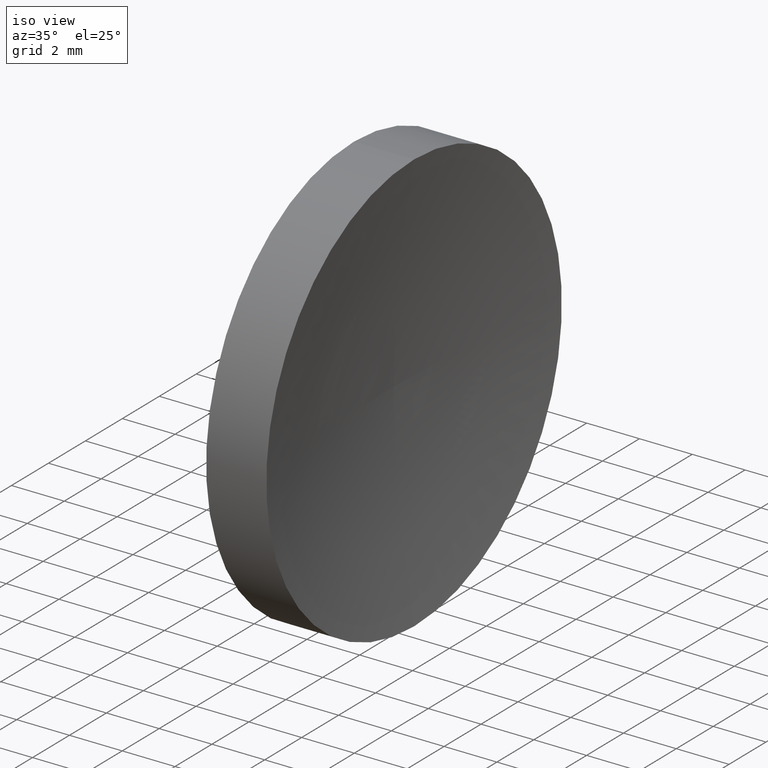
[diagram: clean part render]
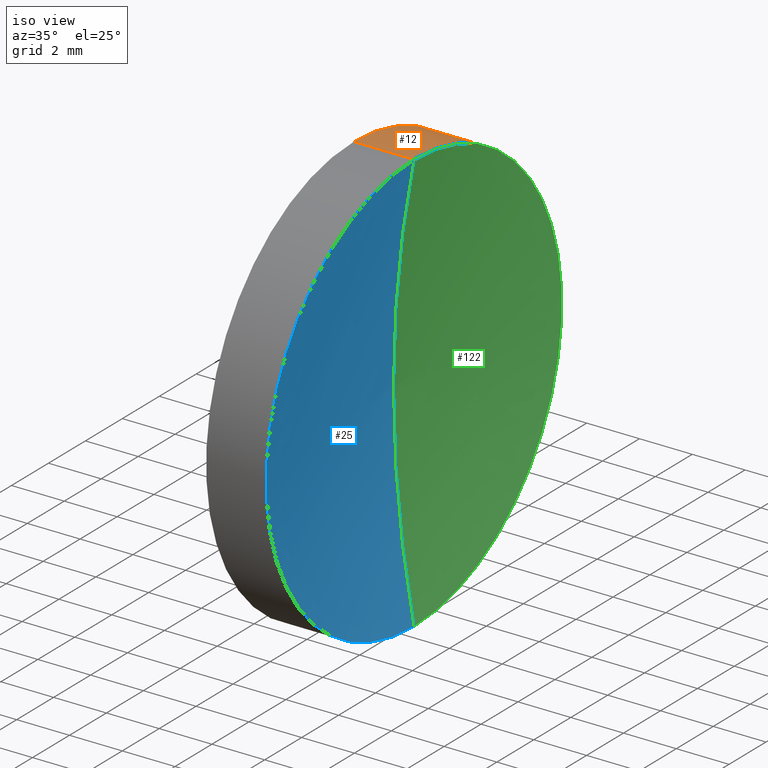
[diagram: same view with three faces highlighted in distinct colors, each labeled with its STEP entity id]
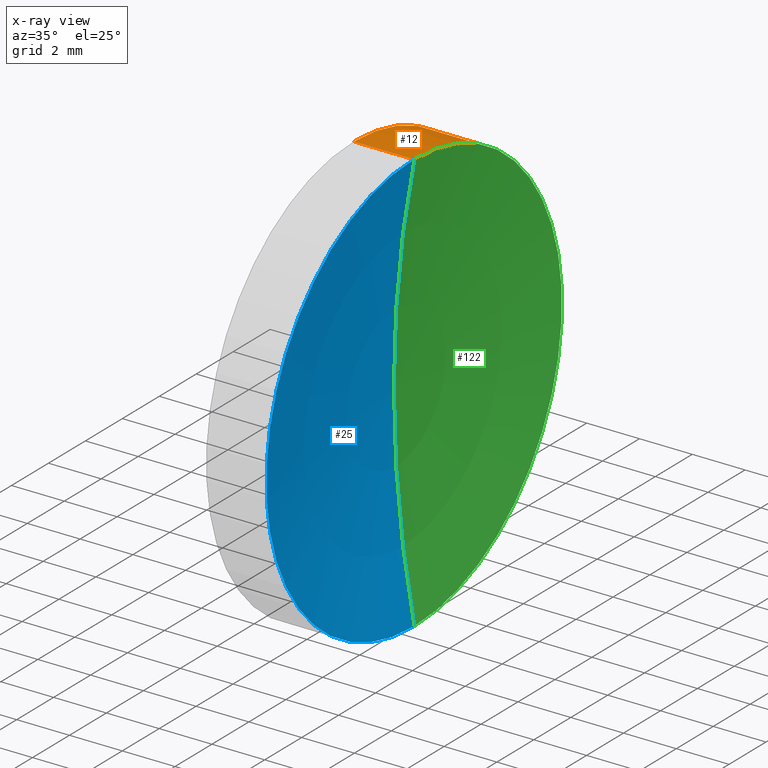
[diagram: x-ray of the same camera — body ghosted, the three highlighted faces saturated]
A machine part, iso view with three faces highlighted in distinct colors.
The next image is the same camera in x-ray (body ghosted, the three faces saturated) — at least one of them is partly hidden behind the body in this view.
Their STEP definitions:

[orange] entity #12 — the highlighted cylindrical surface (partial cylindrical patch) has radius 8 mm, axis along (-1, -0, -0).
#6 = ORIENTED_EDGE ( 'NONE', *, *, #127, .T. ) ;
#10 = ORIENTED_EDGE ( 'NONE', *, *, #85, .T. ) ;
#12 = ADVANCED_FACE ( 'NONE', ( #69 ), #36, .T. ) ;
#16 = AXIS2_PLACEMENT_3D ( 'NONE', #115, #64, #155 ) ;
#24 = VERTEX_POINT ( 'NONE', #139 ) ;
#30 = DIRECTION ( 'NONE',  ( 0.0000000000000000000, 0.0000000000000000000, 1.000000000000000000 ) ) ;
#32 = CARTESIAN_POINT ( 'NONE',  ( 42.44986111413682300, 26.08904114919495900, 0.0000000000000000000 ) ) ;
#35 = CARTESIAN_POINT ( 'NONE',  ( 46.59844384267000800, 26.08904114919495900, 0.0000000000000000000 ) ) ;
#36 = CYLINDRICAL_SURFACE ( 'NONE', #110, 8.000000000000000000 ) ;
#42 = VECTOR ( 'NONE', #47, 1000.000000000000000 ) ;
#47 = DIRECTION ( 'NONE',  ( -1.000000000000000000, -0.0000000000000000000, -0.0000000000000000000 ) ) ;
#58 = ORIENTED_EDGE ( 'NONE', *, *, #95, .F. ) ;
#60 = CARTESIAN_POINT ( 'NONE',  ( 44.31915269315436500, 26.08904114919495900, -8.000000000000003600 ) ) ;
#64 = DIRECTION ( 'NONE',  ( -1.000000000000000000, -0.0000000000000000000, -0.0000000000000000000 ) ) ;
#65 = DIRECTION ( 'NONE',  ( -1.000000000000000000, -0.0000000000000000000, -0.0000000000000000000 ) ) ;
#69 = FACE_OUTER_BOUND ( 'NONE', #103, .T. ) ;
#77 = DIRECTION ( 'NONE',  ( 0.0000000000000000000, 0.0000000000000000000, 1.000000000000000000 ) ) ;
#81 = CIRCLE ( 'NONE', #109, 7.999999999999996400 ) ;
#85 = EDGE_CURVE ( 'NONE', #126, #99, #104, .T. ) ;
#89 = DIRECTION ( 'NONE',  ( -1.000000000000000000, -0.0000000000000000000, -0.0000000000000000000 ) ) ;
#95 = EDGE_CURVE ( 'NONE', #24, #146, #107, .T. ) ;
#99 = VERTEX_POINT ( 'NONE', #60 ) ;
#103 = EDGE_LOOP ( 'NONE', ( #6, #10, #114, #58 ) ) ;
#104 = LINE ( 'NONE', #161, #42 ) ;
#107 = LINE ( 'NONE', #125, #118 ) ;
#109 = AXIS2_PLACEMENT_3D ( 'NONE', #35, #65, #77 ) ;
#110 = AXIS2_PLACEMENT_3D ( 'NONE', #32, #89, #30 ) ;
#114 = ORIENTED_EDGE ( 'NONE', *, *, #153, .F. ) ;
#115 = CARTESIAN_POINT ( 'NONE',  ( 44.31915269315436500, 26.08904114919495900, 0.0000000000000000000 ) ) ;
#118 = VECTOR ( 'NONE', #150, 1000.000000000000000 ) ;
#125 = CARTESIAN_POINT ( 'NONE',  ( 42.44986111413682300, 26.08904114919495900, 8.000000000000000000 ) ) ;
#126 = VERTEX_POINT ( 'NONE', #128 ) ;
#127 = EDGE_CURVE ( 'NONE', #24, #126, #81, .T. ) ;
#128 = CARTESIAN_POINT ( 'NONE',  ( 46.59844384267000800, 26.08904114919495900, -7.999999999999979600 ) ) ;
#139 = CARTESIAN_POINT ( 'NONE',  ( 46.59844384267000800, 26.08904114919495900, 7.999999999999979600 ) ) ;
#146 = VERTEX_POINT ( 'NONE', #157 ) ;
#150 = DIRECTION ( 'NONE',  ( -1.000000000000000000, -0.0000000000000000000, -0.0000000000000000000 ) ) ;
#151 = CIRCLE ( 'NONE', #16, 8.000000000000003600 ) ;
#153 = EDGE_CURVE ( 'NONE', #146, #99, #151, .T. ) ;
#155 = DIRECTION ( 'NONE',  ( 0.0000000000000000000, 0.0000000000000000000, 1.000000000000000000 ) ) ;
#157 = CARTESIAN_POINT ( 'NONE',  ( 44.31915269315436500, 26.08904114919495900, 8.000000000000003600 ) ) ;
#161 = CARTESIAN_POINT ( 'NONE',  ( 42.44986111413682300, 26.08904114919495900, -8.000000000000000000 ) ) ;

[blue] entity #25 — the highlighted toroidal blend (fillet) surface has major radius 0.0149 mm and minor (blend) radius 41.3 mm.
#7 = DIRECTION ( 'NONE',  ( 0.0000000000000000000, 0.0000000000000000000, 1.000000000000000000 ) ) ;
#14 = CIRCLE ( 'NONE', #67, 41.30000000000000400 ) ;
#15 = TOROIDAL_SURFACE ( 'NONE', #92, 0.01486581670328071500, 41.30000000000000400 ) ;
#20 = AXIS2_PLACEMENT_3D ( 'NONE', #45, #87, #7 ) ;
#24 = VERTEX_POINT ( 'NONE', #139 ) ;
#25 = ADVANCED_FACE ( 'NONE', ( #83 ), #15, .F. ) ;
#39 = DIRECTION ( 'NONE',  ( 0.0000000000000000000, -8.400597946618919500E-017, 1.000000000000000000 ) ) ;
#44 = CIRCLE ( 'NONE', #20, 7.999999999999996400 ) ;
#45 = CARTESIAN_POINT ( 'NONE',  ( 46.59844384267000800, 26.08904114919495900, 0.0000000000000000000 ) ) ;
#46 = DIRECTION ( 'NONE',  ( 0.0000000000000000000, 0.0000000000000000000, 1.000000000000000000 ) ) ;
#61 = EDGE_LOOP ( 'NONE', ( #108, #111, #78 ) ) ;
#63 = CARTESIAN_POINT ( 'NONE',  ( 45.81915273204332100, 26.08904114919495900, 0.0000000000000000000 ) ) ;
#67 = AXIS2_PLACEMENT_3D ( 'NONE', #131, #105, #39 ) ;
#70 = CIRCLE ( 'NONE', #100, 41.30000000000000400 ) ;
#71 = EDGE_CURVE ( 'NONE', #24, #136, #70, .T. ) ;
#72 = EDGE_CURVE ( 'NONE', #126, #24, #44, .T. ) ;
#78 = ORIENTED_EDGE ( 'NONE', *, *, #71, .F. ) ;
#83 = FACE_OUTER_BOUND ( 'NONE', #61, .T. ) ;
#87 = DIRECTION ( 'NONE',  ( -1.000000000000000000, -0.0000000000000000000, -0.0000000000000000000 ) ) ;
#88 = DIRECTION ( 'NONE',  ( -1.000000000000000000, -0.0000000000000000000, -0.0000000000000000000 ) ) ;
#90 = CARTESIAN_POINT ( 'NONE',  ( 87.11915005658917700, 26.08904114919495900, 0.0000000000000000000 ) ) ;
#92 = AXIS2_PLACEMENT_3D ( 'NONE', #90, #88, #46 ) ;
#100 = AXIS2_PLACEMENT_3D ( 'NONE', #133, #112, #135 ) ;
#105 = DIRECTION ( 'NONE',  ( -0.0000000000000000000, 1.000000000000000000, 1.224646799147353200E-016 ) ) ;
#108 = ORIENTED_EDGE ( 'NONE', *, *, #72, .F. ) ;
#111 = ORIENTED_EDGE ( 'NONE', *, *, #160, .T. ) ;
#112 = DIRECTION ( 'NONE',  ( 0.0000000000000000000, -1.000000000000000000, 0.0000000000000000000 ) ) ;
#126 = VERTEX_POINT ( 'NONE', #128 ) ;
#128 = CARTESIAN_POINT ( 'NONE',  ( 46.59844384267000800, 26.08904114919495900, -7.999999999999979600 ) ) ;
#131 = CARTESIAN_POINT ( 'NONE',  ( 87.11915005658917700, 26.08904114919495900, -0.01486581670328071500 ) ) ;
#133 = CARTESIAN_POINT ( 'NONE',  ( 87.11915005658917700, 26.08904114919495900, 0.01486581670328071500 ) ) ;
#135 = DIRECTION ( 'NONE',  ( 0.0000000000000000000, 0.0000000000000000000, -1.000000000000000000 ) ) ;
#136 = VERTEX_POINT ( 'NONE', #63 ) ;
#139 = CARTESIAN_POINT ( 'NONE',  ( 46.59844384267000800, 26.08904114919495900, 7.999999999999979600 ) ) ;
#160 = EDGE_CURVE ( 'NONE', #126, #136, #14, .T. ) ;

[green] entity #122 — the highlighted toroidal blend (fillet) surface has major radius 0.0149 mm and minor (blend) radius 41.3 mm.
#5 = ORIENTED_EDGE ( 'NONE', *, *, #160, .F. ) ;
#14 = CIRCLE ( 'NONE', #67, 41.30000000000000400 ) ;
#17 = ORIENTED_EDGE ( 'NONE', *, *, #127, .F. ) ;
#19 = CARTESIAN_POINT ( 'NONE',  ( 87.11915005658917700, 26.08904114919495900, 0.0000000000000000000 ) ) ;
#24 = VERTEX_POINT ( 'NONE', #139 ) ;
#35 = CARTESIAN_POINT ( 'NONE',  ( 46.59844384267000800, 26.08904114919495900, 0.0000000000000000000 ) ) ;
#39 = DIRECTION ( 'NONE',  ( 0.0000000000000000000, -8.400597946618919500E-017, 1.000000000000000000 ) ) ;
#51 = DIRECTION ( 'NONE',  ( -1.000000000000000000, -0.0000000000000000000, -0.0000000000000000000 ) ) ;
#63 = CARTESIAN_POINT ( 'NONE',  ( 45.81915273204332100, 26.08904114919495900, 0.0000000000000000000 ) ) ;
#65 = DIRECTION ( 'NONE',  ( -1.000000000000000000, -0.0000000000000000000, -0.0000000000000000000 ) ) ;
#67 = AXIS2_PLACEMENT_3D ( 'NONE', #131, #105, #39 ) ;
#70 = CIRCLE ( 'NONE', #100, 41.30000000000000400 ) ;
#71 = EDGE_CURVE ( 'NONE', #24, #136, #70, .T. ) ;
#77 = DIRECTION ( 'NONE',  ( 0.0000000000000000000, 0.0000000000000000000, 1.000000000000000000 ) ) ;
#81 = CIRCLE ( 'NONE', #109, 7.999999999999996400 ) ;
#100 = AXIS2_PLACEMENT_3D ( 'NONE', #133, #112, #135 ) ;
#102 = DIRECTION ( 'NONE',  ( 0.0000000000000000000, 0.0000000000000000000, 1.000000000000000000 ) ) ;
#105 = DIRECTION ( 'NONE',  ( -0.0000000000000000000, 1.000000000000000000, 1.224646799147353200E-016 ) ) ;
#109 = AXIS2_PLACEMENT_3D ( 'NONE', #35, #65, #77 ) ;
#112 = DIRECTION ( 'NONE',  ( 0.0000000000000000000, -1.000000000000000000, 0.0000000000000000000 ) ) ;
#113 = FACE_OUTER_BOUND ( 'NONE', #152, .T. ) ;
#122 = ADVANCED_FACE ( 'NONE', ( #113 ), #123, .F. ) ;
#123 = TOROIDAL_SURFACE ( 'NONE', #145, 0.01486581670328071500, 41.30000000000000400 ) ;
#126 = VERTEX_POINT ( 'NONE', #128 ) ;
#127 = EDGE_CURVE ( 'NONE', #24, #126, #81, .T. ) ;
#128 = CARTESIAN_POINT ( 'NONE',  ( 46.59844384267000800, 26.08904114919495900, -7.999999999999979600 ) ) ;
#131 = CARTESIAN_POINT ( 'NONE',  ( 87.11915005658917700, 26.08904114919495900, -0.01486581670328071500 ) ) ;
#133 = CARTESIAN_POINT ( 'NONE',  ( 87.11915005658917700, 26.08904114919495900, 0.01486581670328071500 ) ) ;
#135 = DIRECTION ( 'NONE',  ( 0.0000000000000000000, 0.0000000000000000000, -1.000000000000000000 ) ) ;
#136 = VERTEX_POINT ( 'NONE', #63 ) ;
#139 = CARTESIAN_POINT ( 'NONE',  ( 46.59844384267000800, 26.08904114919495900, 7.999999999999979600 ) ) ;
#145 = AXIS2_PLACEMENT_3D ( 'NONE', #19, #51, #102 ) ;
#152 = EDGE_LOOP ( 'NONE', ( #5, #17, #165 ) ) ;
#160 = EDGE_CURVE ( 'NONE', #126, #136, #14, .T. ) ;
#165 = ORIENTED_EDGE ( 'NONE', *, *, #71, .T. ) ;